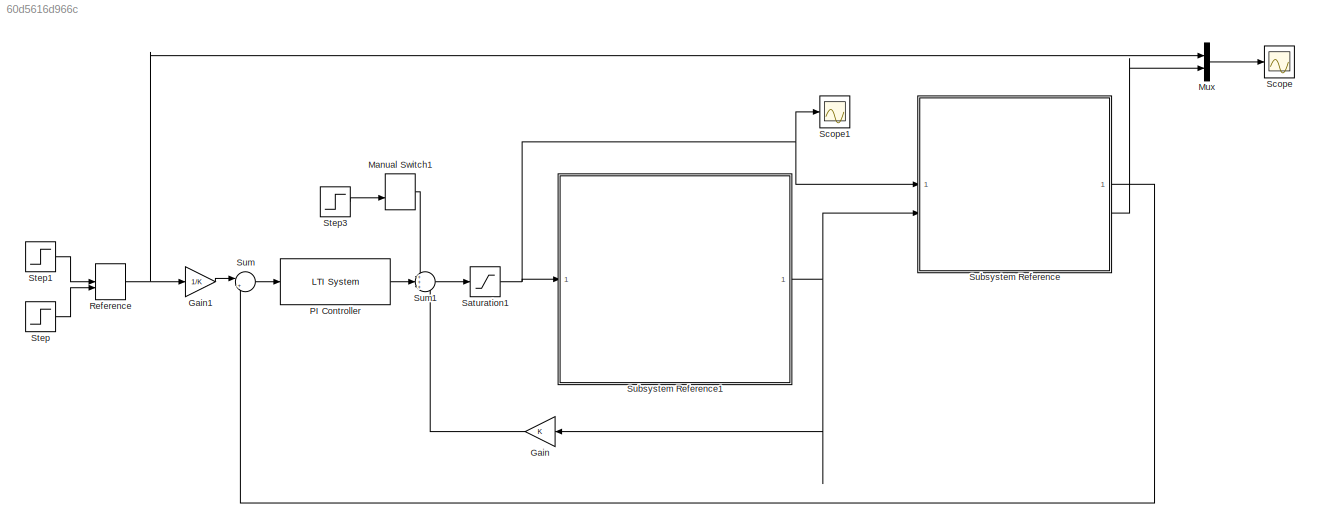
MODEL slx_60d5616d966c
KIND model
CONFIG AbsTol = auto
CONFIG EnableMultiTasking = off
CONFIG FixedStep = auto
CONFIG MaxStep = auto
CONFIG MinStep = auto
CONFIG RelTol = 1e-5
CONFIG SampleTimeConstraint = Unconstrained
CONFIG SolverName = VariableStepAuto
CONFIG StartTime = 0.0
CONFIG StopTime = 3.5
BLOCK [Gain] Gain
  Gain = K
  NameLocation = top
BLOCK [Gain] Gain1
  Gain = 1/K
BLOCK [ManualSwitch] Manual Switch1
BLOCK [Mux] Mux
  DisplayOption = bar
  Inputs = 2
BLOCK [Reference] PI Controller  REF=cstblocks/LTI System
  SourceBlock = cstblocks/LTI System
  SourceType = LTI Block
BLOCK [ManualSwitch] Reference
BLOCK [Saturate] Saturation1
  LowerLimit = -12
  UpperLimit = 12
BLOCK [Scope] Scope
  Floating = off
  NumInputPorts = 1
  ScopeSpecificationString = Simulink.scopes.TimeScopeBlockCfg('CurrentConfiguration', extmgr.ConfigurationSet(extmgr.Configuration('Core','General UI',true),extmgr.Configuration('Core','Source UI',true),extmgr.Configuration('Sources','WiredSimulink',true),extmgr.Configuration('Visuals','Time Domain',true,'TimeAxisLabels','All','SerializedDisplays',{struct('MinYLimReal','-0.01875','MaxYLimReal','0.16875','YLabelReal','Torque ...<+2046ch>
BLOCK [Scope] Scope1
  Floating = off
  NumInputPorts = 1
  ScopeSpecificationString = Simulink.scopes.TimeScopeBlockCfg('CurrentConfiguration', extmgr.ConfigurationSet(extmgr.Configuration('Core','General UI',true),extmgr.Configuration('Core','Source UI',true),extmgr.Configuration('Sources','WiredSimulink',true,'DataLoggingVariableName','ScopeData1'),extmgr.Configuration('Visuals','Time Domain',true,'SerializedDisplays',{struct('MinYLimReal','-0.45155','MaxYLimReal','4.52364','YLab...<+1466ch>
BLOCK [Step] Step
  After = 0
  Before = 1
  SampleTime = 0
  Time = 2
BLOCK [Step] Step1
  After = 0.15
  SampleTime = 0
  Time = 0
BLOCK [Step] Step3
  After = -0.1
  SampleTime = 0
  Time = 2
BLOCK [SubSystem] Subsystem Reference
  K = 1.339
  L = 2.3e-3
  R = 1.7
  ReferencedSubsystem = pololu_37D_torque_first_order
BLOCK [SubSystem] Subsystem Reference1
  ReferencedSubsystem = pololu_37D_pos_second_order
BLOCK [Sum] Sum
  Inputs = |+-
BLOCK [Sum] Sum1
  Inputs = +++
LINE Gain1:1 -> Sum:1
LINE Gain:1 -> Sum1:3
LINE Manual Switch1:1 -> Sum1:1
LINE Mux:1 -> Scope:1
LINE PI Controller:1 -> Sum1:2
NET Reference:1 -> Gain1:1, Mux:1
NET Saturation1:1 -> Scope1:1, Subsystem Reference1:1, Subsystem Reference:1
LINE Step1:1 -> Reference:1
LINE Step3:1 -> Manual Switch1:2
LINE Step:1 -> Reference:2
NET Subsystem Reference1:1 -> Gain:1, Subsystem Reference:2
LINE Subsystem Reference:1 -> Sum:2
LINE Subsystem Reference:2 -> Mux:2
LINE Sum1:1 -> Saturation1:1
LINE Sum:1 -> PI Controller:1
note: NET lines group one-source signal fan-out (src -> all destinations, sorted); 1:1 wires keep LINE
